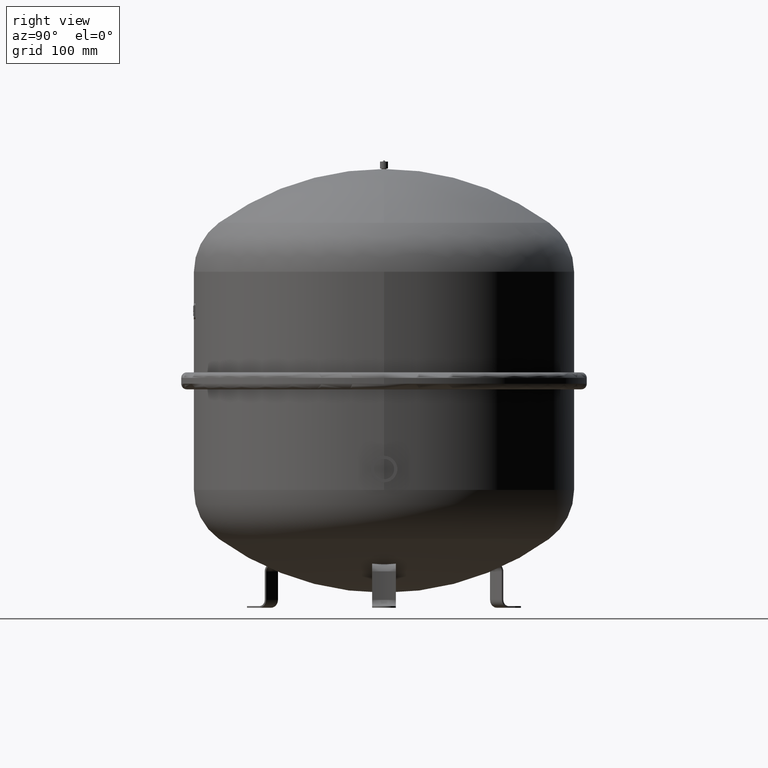
[diagram: clean part render]
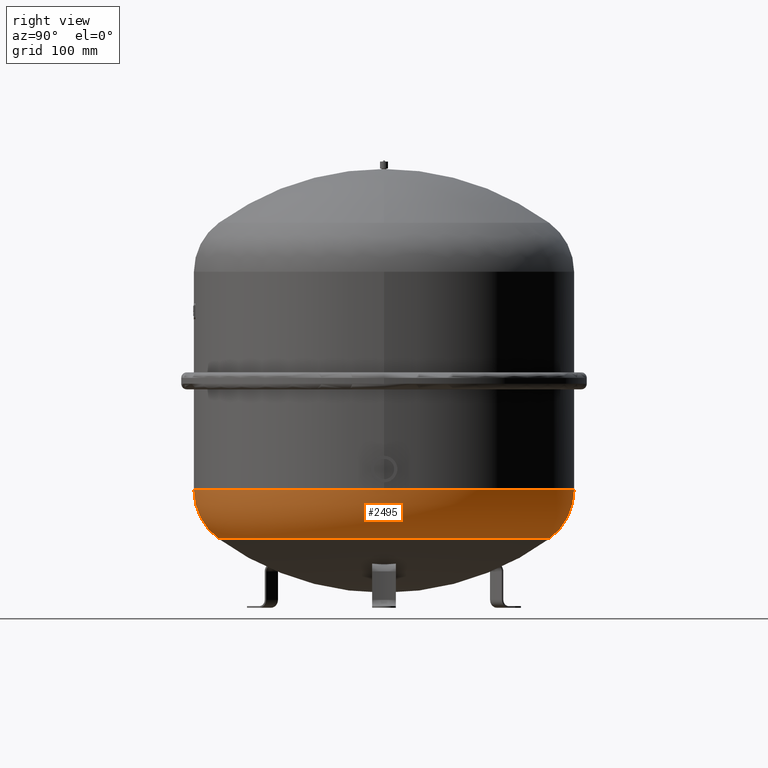
[diagram: same view with one face highlighted and labeled with its STEP entity id]
A machine part, right view. The second image highlights one B-rep face of the part: STEP entity #2495.
In plain terms, the highlighted toroidal blend (fillet) surface has major radius 163.5 mm and minor (blend) radius 76.5 mm.
Its self-contained STEP definition (entity closure, byte-faithful):
#2345=CARTESIAN_POINT('',(240.00000000000003,5.550104E-015,148.78135670734244));
#2346=VERTEX_POINT('',#2345);
#2353=CARTESIAN_POINT('',(-2.939055E-014,240.00000000000003,148.7813567073425));
#2354=VERTEX_POINT('',#2353);
#2355=CARTESIAN_POINT('',(0.0,-2.384045E-014,148.78135670734244));
#2356=DIRECTION('',(0.0,0.0,1.0));
#2357=DIRECTION('',(-1.0,0.0,0.0));
#2358=AXIS2_PLACEMENT_3D('',#2355,#2356,#2357);
#2359=CIRCLE('',#2358,240.00000000000006);
#2360=EDGE_CURVE('',#2346,#2354,#2359,.T.);
#2377=CARTESIAN_POINT('',(0.0,-240.00000000000009,148.78135670734238));
#2378=VERTEX_POINT('',#2377);
#2379=CARTESIAN_POINT('',(0.0,-208.57297297297296,86.969730718555795));
#2380=VERTEX_POINT('',#2379);
#2381=CARTESIAN_POINT('',(0.0,-163.50000000000003,148.78135670734244));
#2382=DIRECTION('',(1.0,0.0,0.0));
#2383=DIRECTION('',(0.0,-1.0,0.0));
#2384=AXIS2_PLACEMENT_3D('',#2381,#2382,#2383);
#2385=CIRCLE('',#2384,76.5);
#2386=EDGE_CURVE('',#2378,#2380,#2385,.T.);
#2396=CARTESIAN_POINT('',(-2.554198E-014,208.57297297297296,86.96973071855588));
#2397=VERTEX_POINT('',#2396);
#2398=CARTESIAN_POINT('',(-2.002231E-014,163.49999999999997,148.7813567073425));
#2399=DIRECTION('',(-1.0,0.0,0.0));
#2400=DIRECTION('',(0.0,1.0,0.0));
#2401=AXIS2_PLACEMENT_3D('',#2398,#2399,#2400);
#2402=CIRCLE('',#2401,76.5);
#2403=EDGE_CURVE('',#2354,#2397,#2402,.T.);
#2429=CARTESIAN_POINT('',(208.57297297297296,-6.502875E-014,86.969730718555866));
#2430=VERTEX_POINT('',#2429);
#2440=CARTESIAN_POINT('',(0.0,-1.248584E-014,86.969730718555837));
#2441=DIRECTION('',(0.0,0.0,1.0));
#2442=DIRECTION('',(-1.0,0.0,0.0));
#2443=AXIS2_PLACEMENT_3D('',#2440,#2441,#2442);
#2444=CIRCLE('',#2443,208.57297297297296);
#2445=EDGE_CURVE('',#2380,#2430,#2444,.T.);
#2466=CARTESIAN_POINT('',(0.0,-1.248584E-014,86.969730718555837));
#2467=DIRECTION('',(0.0,0.0,1.0));
#2468=DIRECTION('',(-1.0,0.0,0.0));
#2469=AXIS2_PLACEMENT_3D('',#2466,#2467,#2468);
#2470=CIRCLE('',#2469,208.57297297297296);
#2471=EDGE_CURVE('',#2430,#2397,#2470,.T.);
#2476=CARTESIAN_POINT('',(0.0,-2.384045E-014,148.78135670734247));
#2477=DIRECTION('',(0.0,-1.836970E-016,1.0));
#2478=DIRECTION('',(0.0,-1.0,0.0));
#2479=AXIS2_PLACEMENT_3D('',#2476,#2477,#2478);
#2480=TOROIDAL_SURFACE('',#2479,163.5,76.5);
#2481=ORIENTED_EDGE('',*,*,#2386,.T.);
#2482=ORIENTED_EDGE('',*,*,#2445,.T.);
#2483=ORIENTED_EDGE('',*,*,#2471,.T.);
#2484=ORIENTED_EDGE('',*,*,#2403,.F.);
#2485=ORIENTED_EDGE('',*,*,#2360,.F.);
#2486=CARTESIAN_POINT('',(0.0,-2.384045E-014,148.78135670734244));
#2487=DIRECTION('',(0.0,0.0,1.0));
#2488=DIRECTION('',(-1.0,0.0,0.0));
#2489=AXIS2_PLACEMENT_3D('',#2486,#2487,#2488);
#2490=CIRCLE('',#2489,240.00000000000006);
#2491=EDGE_CURVE('',#2378,#2346,#2490,.T.);
#2492=ORIENTED_EDGE('',*,*,#2491,.F.);
#2493=EDGE_LOOP('',(#2481,#2482,#2483,#2484,#2485,#2492));
#2494=FACE_OUTER_BOUND('',#2493,.T.);
#2495=ADVANCED_FACE('',(#2494),#2480,.T.);